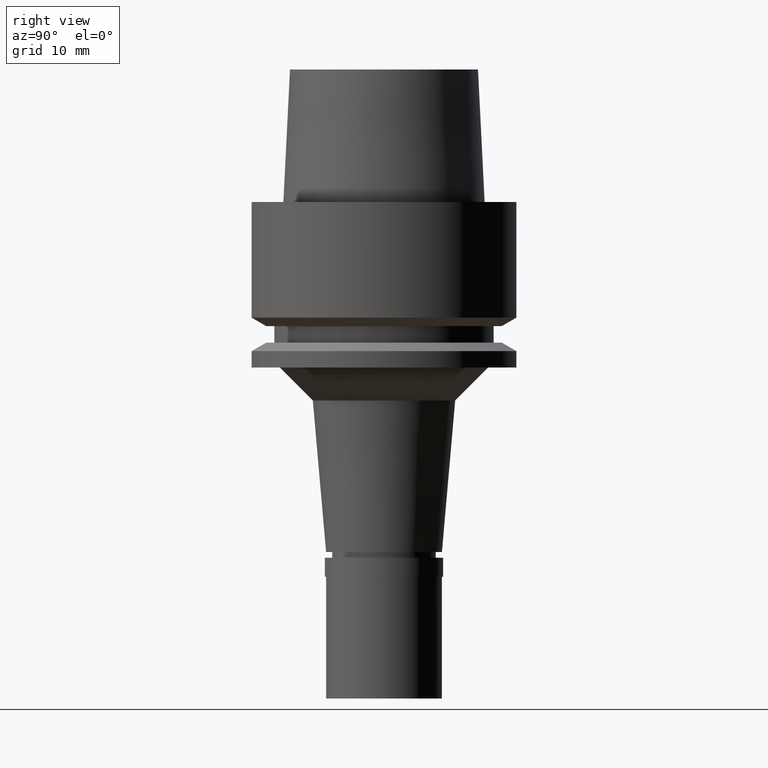
[diagram: clean part render]
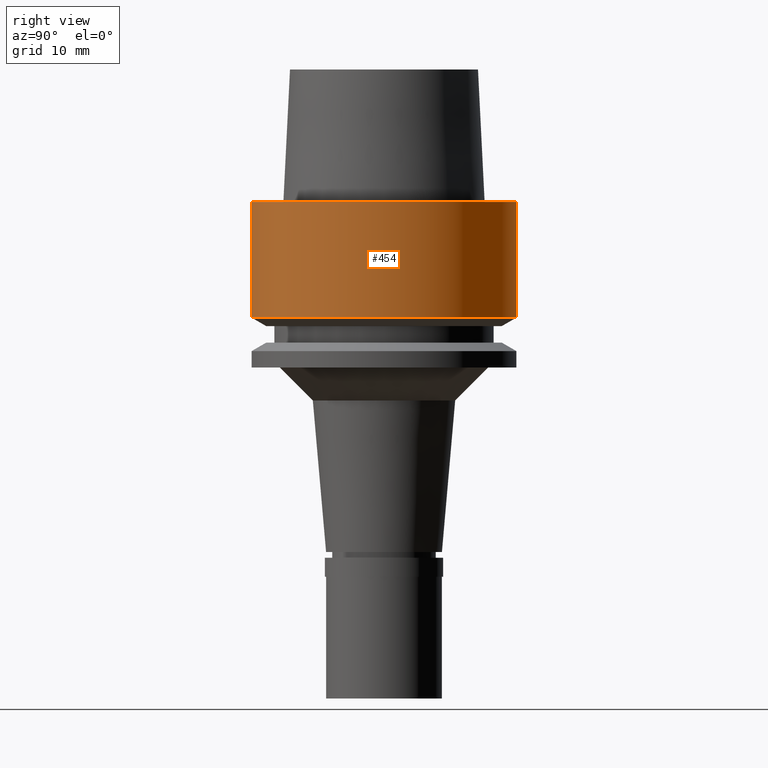
[diagram: same view with one face highlighted and labeled with its STEP entity id]
A machine part, right view. The second image highlights one B-rep face of the part: STEP entity #454.
In plain terms, the highlighted cylindrical surface (partial cylindrical patch) has radius 16 mm, axis along (0, 0, -1).
Its self-contained STEP definition (entity closure, byte-faithful):
#44 = EDGE_LOOP ( 'NONE', ( #1548, #2290, #594, #1628 ) ) ;
#60 = VERTEX_POINT ( 'NONE', #1080 ) ;
#282 = AXIS2_PLACEMENT_3D ( 'NONE', #863, #1117, #1484 ) ;
#293 = CARTESIAN_POINT ( 'NONE',  ( 0.0000000000000000000, 0.0000000000000000000, 19.59999999999999787 ) ) ;
#430 = CARTESIAN_POINT ( 'NONE',  ( 0.0000000000000000000, 0.0000000000000000000, -1.776356839399999922E-14 ) ) ;
#435 = EDGE_CURVE ( 'NONE', #711, #2080, #1725, .T. ) ;
#454 = ADVANCED_FACE ( 'NONE', ( #1924 ), #2551, .T. ) ;
#514 = VECTOR ( 'NONE', #1726, 1000.000000000000000 ) ;
#594 = ORIENTED_EDGE ( 'NONE', *, *, #2264, .T. ) ;
#679 = DIRECTION ( 'NONE',  ( 0.0000000000000000000, -1.000000000000000000, 0.0000000000000000000 ) ) ;
#711 = VERTEX_POINT ( 'NONE', #983 ) ;
#719 = VECTOR ( 'NONE', #1081, 1000.000000000000000 ) ;
#819 = EDGE_CURVE ( 'NONE', #711, #2462, #2200, .T. ) ;
#862 = DIRECTION ( 'NONE',  ( 0.0000000000000000000, 0.0000000000000000000, -1.000000000000000000 ) ) ;
#863 = CARTESIAN_POINT ( 'NONE',  ( 0.0000000000000000000, 0.0000000000000000000, -13.97927405783999966 ) ) ;
#876 = CARTESIAN_POINT ( 'NONE',  ( 0.0000000000000000000, 16.00000000000000000, -1.184237892934000027E-14 ) ) ;
#909 = CARTESIAN_POINT ( 'NONE',  ( 0.0000000000000000000, -16.00000000000000000, -1.184237892934000027E-14 ) ) ;
#983 = CARTESIAN_POINT ( 'NONE',  ( 0.0000000000000000000, 16.00000000000000000, -1.184237892934000027E-14 ) ) ;
#995 = DIRECTION ( 'NONE',  ( 0.0000000000000000000, 0.0000000000000000000, -1.000000000000000000 ) ) ;
#1070 = LINE ( 'NONE', #909, #514 ) ;
#1080 = CARTESIAN_POINT ( 'NONE',  ( 0.0000000000000000000, -16.00000000000000000, -13.97927405783999966 ) ) ;
#1081 = DIRECTION ( 'NONE',  ( 0.0000000000000000000, -6.772870976582999535E-14, -1.000000000000000000 ) ) ;
#1117 = DIRECTION ( 'NONE',  ( 0.0000000000000000000, 0.0000000000000000000, 1.000000000000000000 ) ) ;
#1457 = CIRCLE ( 'NONE', #282, 16.00000000000000000 ) ;
#1484 = DIRECTION ( 'NONE',  ( 0.0000000000000000000, -1.000000000000000000, 0.0000000000000000000 ) ) ;
#1548 = ORIENTED_EDGE ( 'NONE', *, *, #819, .T. ) ;
#1625 = DIRECTION ( 'NONE',  ( 0.0000000000000000000, 1.000000000000000000, 0.0000000000000000000 ) ) ;
#1628 = ORIENTED_EDGE ( 'NONE', *, *, #435, .F. ) ;
#1643 = CARTESIAN_POINT ( 'NONE',  ( 0.0000000000000000000, 16.00000000000000000, -13.97927405783999966 ) ) ;
#1725 = LINE ( 'NONE', #876, #719 ) ;
#1726 = DIRECTION ( 'NONE',  ( 0.0000000000000000000, 6.772870976582999535E-14, -1.000000000000000000 ) ) ;
#1924 = FACE_OUTER_BOUND ( 'NONE', #44, .T. ) ;
#2080 = VERTEX_POINT ( 'NONE', #1643 ) ;
#2200 = CIRCLE ( 'NONE', #2542, 16.00000000000000000 ) ;
#2241 = EDGE_CURVE ( 'NONE', #2462, #60, #1070, .T. ) ;
#2264 = EDGE_CURVE ( 'NONE', #60, #2080, #1457, .T. ) ;
#2290 = ORIENTED_EDGE ( 'NONE', *, *, #2241, .T. ) ;
#2462 = VERTEX_POINT ( 'NONE', #2599 ) ;
#2542 = AXIS2_PLACEMENT_3D ( 'NONE', #430, #995, #1625 ) ;
#2551 = CYLINDRICAL_SURFACE ( 'NONE', #2640, 16.00000000000000000 ) ;
#2599 = CARTESIAN_POINT ( 'NONE',  ( 0.0000000000000000000, -16.00000000000000000, -1.776356839399999922E-14 ) ) ;
#2640 = AXIS2_PLACEMENT_3D ( 'NONE', #293, #862, #679 ) ;